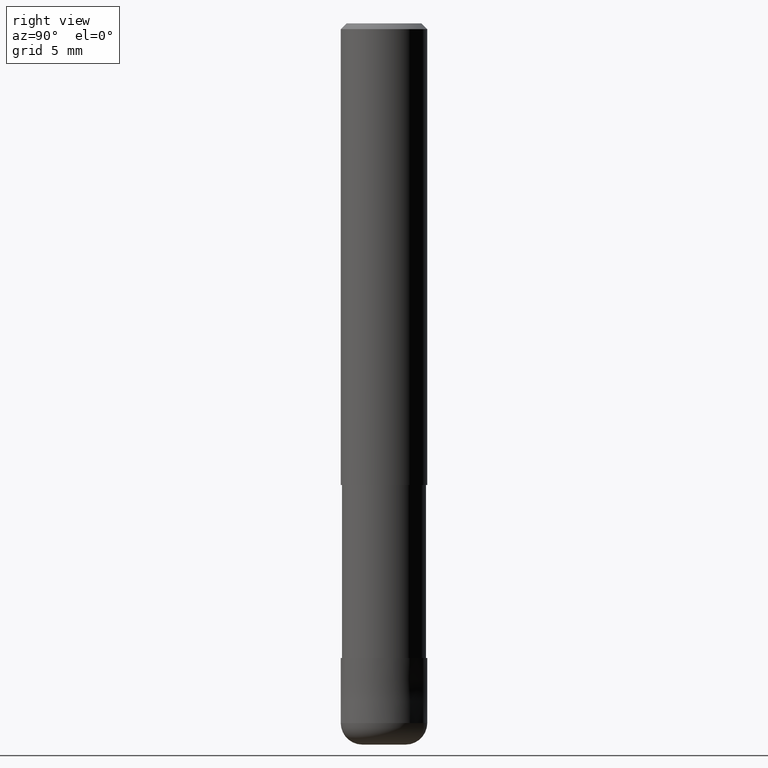
[diagram: clean part render]
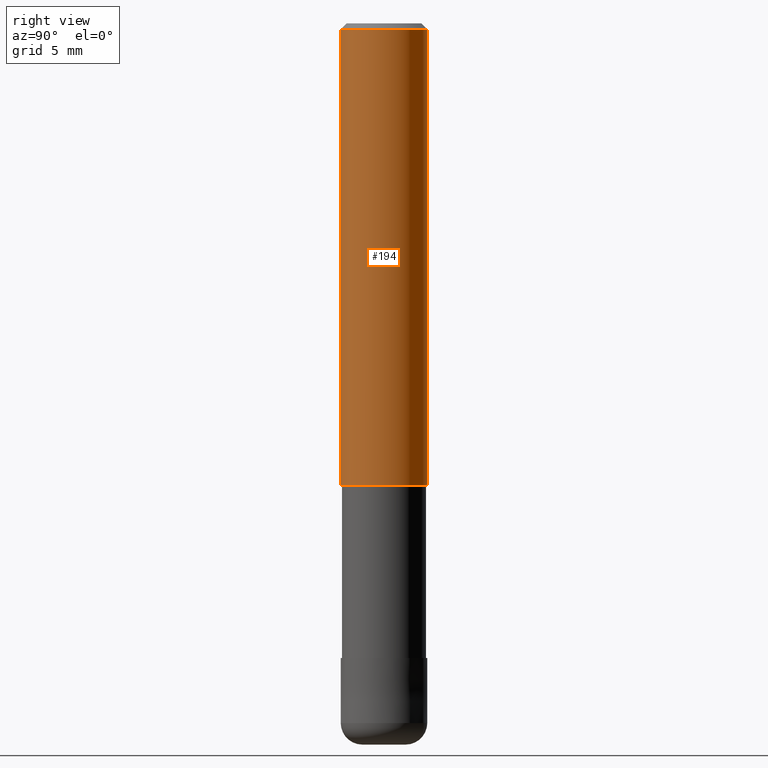
[diagram: same view with one face highlighted and labeled with its STEP entity id]
A machine part, right view. The second image highlights one B-rep face of the part: STEP entity #194.
In plain terms, the highlighted cylindrical surface (partial cylindrical patch) has radius 3 mm, axis along (-0, -0, 1).
Its self-contained STEP definition (entity closure, byte-faithful):
#134=VERTEX_POINT('',#278);
#136=VERTEX_POINT('',#280);
#140=EDGE_CURVE('',#136,#142,#284,.T.);
#142=VERTEX_POINT('',#286);
#144=VERTEX_POINT('',#288);
#150=EDGE_CURVE('',#136,#134,#294,.T.);
#194=ADVANCED_FACE('',(#346),#347,.T.);
#196=EDGE_CURVE('',#144,#142,#349,.T.);
#200=EDGE_CURVE('',#134,#144,#353,.T.);
#278=CARTESIAN_POINT('',(0.0,3.0,-32.0));
#280=CARTESIAN_POINT('',(0.0,3.0,-0.399999999999999));
#284=CIRCLE('',#438,3.0);
#286=CARTESIAN_POINT('',(3.67381906146713E-016,-3.0,-0.399999999999999));
#288=CARTESIAN_POINT('',(3.67381906146713E-016,-3.0,-32.0));
#294=LINE('',#451,#452);
#346=FACE_OUTER_BOUND('',#514,.T.);
#347=CYLINDRICAL_SURFACE('',#515,3.0);
#349=LINE('',#518,#519);
#353=CIRCLE('',#526,3.0);
#438=AXIS2_PLACEMENT_3D('',#609,#610,#611);
#451=CARTESIAN_POINT('',(-3.67381906146713E-016,3.0,-16.2));
#452=VECTOR('',#618,1.0);
#514=EDGE_LOOP('',(#697,#698,#699,#700));
#515=AXIS2_PLACEMENT_3D('',#701,#702,#703);
#518=CARTESIAN_POINT('',(3.67381906146713E-016,-3.0,-16.2));
#519=VECTOR('',#704,1.0);
#526=AXIS2_PLACEMENT_3D('',#706,#707,#708);
#609=CARTESIAN_POINT('',(0.0,0.0,-0.399999999999999));
#610=DIRECTION('',(0.0,0.0,-1.0));
#611=DIRECTION('',(0.0,1.0,0.0));
#618=DIRECTION('',(0.0,0.0,-1.0));
#697=ORIENTED_EDGE('',*,*,#150,.F.);
#698=ORIENTED_EDGE('',*,*,#140,.T.);
#699=ORIENTED_EDGE('',*,*,#196,.F.);
#700=ORIENTED_EDGE('',*,*,#200,.F.);
#701=CARTESIAN_POINT('',(0.0,0.0,-16.2));
#702=DIRECTION('',(-0.0,-0.0,1.0));
#703=DIRECTION('',(0.0,1.0,0.0));
#704=DIRECTION('',(-0.0,-0.0,1.0));
#706=CARTESIAN_POINT('',(0.0,0.0,-32.0));
#707=DIRECTION('',(0.0,0.0,-1.0));
#708=DIRECTION('',(0.0,1.0,0.0));